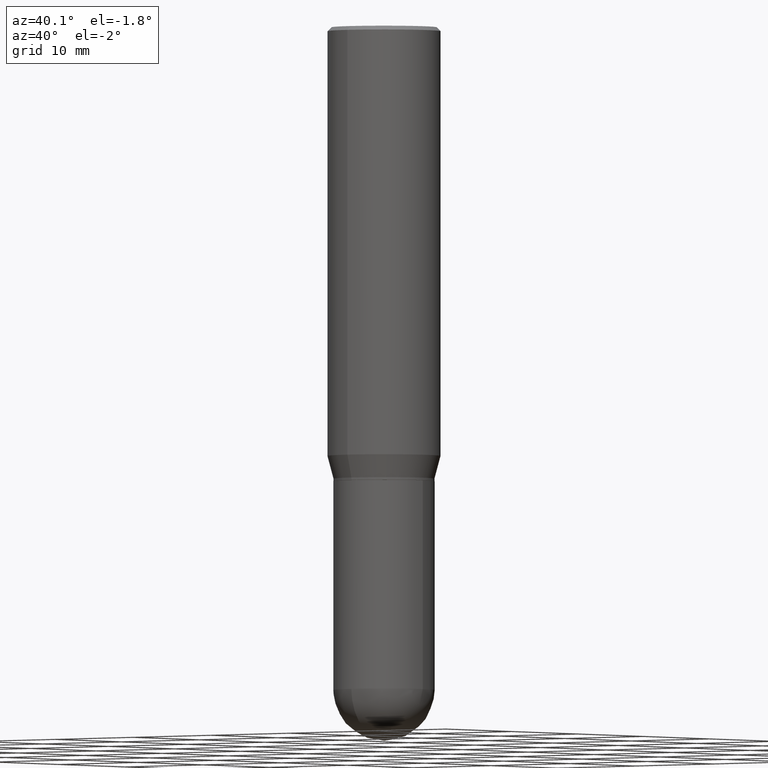
[diagram: clean part render]
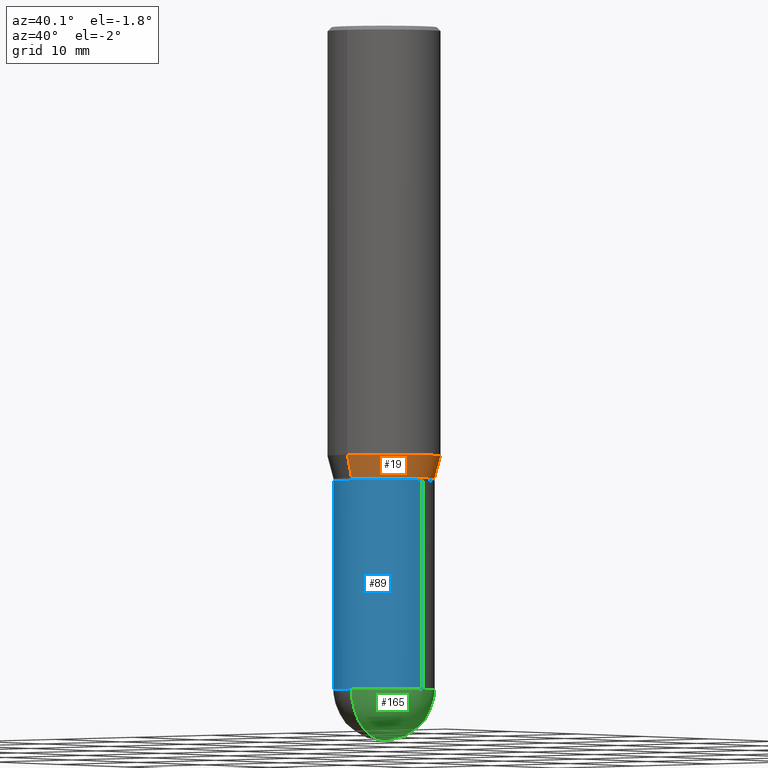
[diagram: same view with three faces highlighted in distinct colors, each labeled with its STEP entity id]
A machine part, auxiliary view with three faces highlighted in distinct colors.
Their STEP definitions:

[orange] entity #19 — the highlighted conical surface has half-angle 15 deg.
#18 = CARTESIAN_POINT ( 'NONE',  ( -1.363772610952084702E-15, -0.1953000000000059688, -1.739999999999999547 ) ) ;
#19 = ADVANCED_FACE ( 'NONE', ( #61 ), #150, .T. ) ;
#31 = DIRECTION ( 'NONE',  ( -6.982962677686266711E-15, -1.000000000000000000, 2.797591391361254348E-15 ) ) ;
#51 = LINE ( 'NONE', #323, #295 ) ;
#61 = FACE_OUTER_BOUND ( 'NONE', #156, .T. ) ;
#65 = ORIENTED_EDGE ( 'NONE', *, *, #186, .F. ) ;
#73 = EDGE_CURVE ( 'NONE', #213, #412, #188, .T. ) ;
#85 = CARTESIAN_POINT ( 'NONE',  ( -1.527523085743830414E-15, -0.2187500000000058009, -1.652483408562509082 ) ) ;
#96 = DIRECTION ( 'NONE',  ( -1.807323732225331323E-15, -0.2588190451025183525, 0.9659258262890689783 ) ) ;
#97 = VECTOR ( 'NONE', #96, 39.37007874015748854 ) ;
#133 = CARTESIAN_POINT ( 'NONE',  ( -1.363772610952084702E-15, -0.1953000000000059688, -1.739999999999999547 ) ) ;
#149 = VERTEX_POINT ( 'NONE', #85 ) ;
#150 = CONICAL_SURFACE ( 'NONE', #363, 0.1952999999999998904, 0.2617993877991504625 ) ;
#156 = EDGE_LOOP ( 'NONE', ( #457, #506, #65, #272 ) ) ;
#184 = CARTESIAN_POINT ( 'NONE',  ( 1.471001098707388140E-15, 0.1952999999999938119, -1.740000000000000657 ) ) ;
#186 = EDGE_CURVE ( 'NONE', #149, #393, #439, .T. ) ;
#188 = CIRCLE ( 'NONE', #415, 0.1952999999999998904 ) ;
#196 = DIRECTION ( 'NONE',  ( -2.445224538422357859E-29, 3.491831144182302259E-15, 1.000000000000000000 ) ) ;
#203 = DIRECTION ( 'NONE',  ( -6.982962677686265133E-15, -1.000000000000000000, 3.746534391310989557E-15 ) ) ;
#213 = VERTEX_POINT ( 'NONE', #18 ) ;
#272 = ORIENTED_EDGE ( 'NONE', *, *, #290, .F. ) ;
#278 = AXIS2_PLACEMENT_3D ( 'NONE', #313, #443, #203 ) ;
#290 = EDGE_CURVE ( 'NONE', #213, #149, #409, .T. ) ;
#295 = VECTOR ( 'NONE', #488, 39.37007874015748854 ) ;
#303 = DIRECTION ( 'NONE',  ( -2.445224538422357859E-29, 3.491831144182302259E-15, 1.000000000000000000 ) ) ;
#313 = CARTESIAN_POINT ( 'NONE',  ( 4.040692979952868380E-29, -5.770193031263100651E-15, -1.652483408562509748 ) ) ;
#323 = CARTESIAN_POINT ( 'NONE',  ( 1.387689962939517088E-15, 0.1952999999999938119, -1.740000000000000657 ) ) ;
#345 = CARTESIAN_POINT ( 'NONE',  ( 4.254690696854903488E-29, -6.075786190877206191E-15, -1.739999999999999991 ) ) ;
#355 = EDGE_CURVE ( 'NONE', #412, #393, #51, .T. ) ;
#363 = AXIS2_PLACEMENT_3D ( 'NONE', #430, #303, #31 ) ;
#367 = CARTESIAN_POINT ( 'NONE',  ( 1.554312234475258797E-15, 0.2187499999999941713, -1.652483408562510636 ) ) ;
#393 = VERTEX_POINT ( 'NONE', #367 ) ;
#409 = LINE ( 'NONE', #133, #97 ) ;
#412 = VERTEX_POINT ( 'NONE', #184 ) ;
#415 = AXIS2_PLACEMENT_3D ( 'NONE', #345, #196, #475 ) ;
#430 = CARTESIAN_POINT ( 'NONE',  ( 4.254690696854903488E-29, -6.075786190877206191E-15, -1.739999999999999991 ) ) ;
#439 = CIRCLE ( 'NONE', #278, 0.2187500000000000000 ) ;
#443 = DIRECTION ( 'NONE',  ( -2.445224538422357859E-29, 3.491831144182302259E-15, 1.000000000000000000 ) ) ;
#457 = ORIENTED_EDGE ( 'NONE', *, *, #73, .T. ) ;
#475 = DIRECTION ( 'NONE',  ( -6.982962677686266711E-15, -1.000000000000000000, 2.797591391361254348E-15 ) ) ;
#488 = DIRECTION ( 'NONE',  ( 1.839019923739601499E-15, 0.2588190451025251249, 0.9659258262890670910 ) ) ;
#506 = ORIENTED_EDGE ( 'NONE', *, *, #355, .T. ) ;

[blue] entity #89 — the highlighted cylindrical surface (partial cylindrical patch) has radius 4.9606 mm, axis along (-0, 0, 1).
#3 = FACE_OUTER_BOUND ( 'NONE', #59, .T. ) ;
#8 = CARTESIAN_POINT ( 'NONE',  ( -1.387689962939413353E-15, -0.1953000000000089664, -2.554699999999999527 ) ) ;
#13 = AXIS2_PLACEMENT_3D ( 'NONE', #256, #330, #334 ) ;
#32 = EDGE_CURVE ( 'NONE', #116, #101, #369, .T. ) ;
#35 = EDGE_CURVE ( 'NONE', #318, #336, #225, .T. ) ;
#40 = ORIENTED_EDGE ( 'NONE', *, *, #300, .T. ) ;
#47 = AXIS2_PLACEMENT_3D ( 'NONE', #88, #131, #353 ) ;
#59 = EDGE_LOOP ( 'NONE', ( #403, #40, #456, #231, #373 ) ) ;
#66 = DIRECTION ( 'NONE',  ( -2.445468806185136597E-29, 3.491481338843145583E-15, 1.000000000000000000 ) ) ;
#75 = VERTEX_POINT ( 'NONE', #275 ) ;
#88 = CARTESIAN_POINT ( 'NONE',  ( 0.000000000000000000, 0.000000000000000000, 0.000000000000000000 ) ) ;
#89 = ADVANCED_FACE ( 'NONE', ( #3 ), #320, .T. ) ;
#93 = DIRECTION ( 'NONE',  ( -2.445468806185136877E-29, 3.491481338843145188E-15, 1.000000000000000000 ) ) ;
#101 = VERTEX_POINT ( 'NONE', #401 ) ;
#116 = VERTEX_POINT ( 'NONE', #8 ) ;
#131 = DIRECTION ( 'NONE',  ( -2.445468806185136597E-29, 3.491481338843145583E-15, 1.000000000000000000 ) ) ;
#141 = AXIS2_PLACEMENT_3D ( 'NONE', #185, #66, #191 ) ;
#158 = DIRECTION ( 'NONE',  ( 1.000000000000000000, -6.982962677686267499E-15, 0.000000000000000000 ) ) ;
#162 = CARTESIAN_POINT ( 'NONE',  ( 4.279570410823988484E-29, -6.110092342975504671E-15, -1.750000000000000000 ) ) ;
#170 = CARTESIAN_POINT ( 'NONE',  ( -0.1953000000000000569, -6.127199896719566760E-15, -2.554699999999999971 ) ) ;
#181 = EDGE_CURVE ( 'NONE', #336, #75, #250, .T. ) ;
#185 = CARTESIAN_POINT ( 'NONE',  ( 6.247439159161168638E-29, -8.919687376342582955E-15, -2.554699999999999971 ) ) ;
#191 = DIRECTION ( 'NONE',  ( 1.000000000000000000, -6.982962677686266711E-15, 0.000000000000000000 ) ) ;
#207 = VECTOR ( 'NONE', #379, 39.37007874015748143 ) ;
#209 = CARTESIAN_POINT ( 'NONE',  ( -0.1953000000000000291, -6.127199896719567549E-15, -1.750000000000000000 ) ) ;
#225 = LINE ( 'NONE', #305, #207 ) ;
#231 = ORIENTED_EDGE ( 'NONE', *, *, #252, .T. ) ;
#250 = CIRCLE ( 'NONE', #321, 0.1953000000000000291 ) ;
#252 = EDGE_CURVE ( 'NONE', #101, #75, #418, .T. ) ;
#256 = CARTESIAN_POINT ( 'NONE',  ( 6.247439159161168638E-29, -8.919687376342582955E-15, -2.554699999999999971 ) ) ;
#275 = CARTESIAN_POINT ( 'NONE',  ( 0.1953000000000000291, -7.473864953927632957E-15, -1.750000000000000000 ) ) ;
#289 = CARTESIAN_POINT ( 'NONE',  ( 0.1953000000000000291, -1.363772610952128089E-15, 9.523173243129463579E-30 ) ) ;
#300 = EDGE_CURVE ( 'NONE', #318, #116, #387, .T. ) ;
#305 = CARTESIAN_POINT ( 'NONE',  ( -0.1953000000000000291, 1.387689962939475870E-15, -9.606680231267831797E-30 ) ) ;
#318 = VERTEX_POINT ( 'NONE', #170 ) ;
#320 = CYLINDRICAL_SURFACE ( 'NONE', #47, 0.1953000000000000291 ) ;
#321 = AXIS2_PLACEMENT_3D ( 'NONE', #162, #357, #158 ) ;
#330 = DIRECTION ( 'NONE',  ( -2.445468806185136597E-29, 3.491481338843145583E-15, 1.000000000000000000 ) ) ;
#334 = DIRECTION ( 'NONE',  ( 1.000000000000000000, -6.982962677686266711E-15, 0.000000000000000000 ) ) ;
#336 = VERTEX_POINT ( 'NONE', #209 ) ;
#353 = DIRECTION ( 'NONE',  ( 1.000000000000000000, -6.982962677686266711E-15, 4.876176775795935793E-29 ) ) ;
#357 = DIRECTION ( 'NONE',  ( -2.445468806185136597E-29, 3.491481338843145583E-15, 1.000000000000000000 ) ) ;
#369 = CIRCLE ( 'NONE', #141, 0.1953000000000000569 ) ;
#373 = ORIENTED_EDGE ( 'NONE', *, *, #181, .F. ) ;
#379 = DIRECTION ( 'NONE',  ( -2.445468806185136877E-29, 3.491481338843145188E-15, 1.000000000000000000 ) ) ;
#387 = CIRCLE ( 'NONE', #13, 0.1953000000000000569 ) ;
#401 = CARTESIAN_POINT ( 'NONE',  ( 0.1953000000000000569, -8.878662470611173282E-15, -2.554699999999999971 ) ) ;
#403 = ORIENTED_EDGE ( 'NONE', *, *, #35, .F. ) ;
#418 = LINE ( 'NONE', #289, #423 ) ;
#423 = VECTOR ( 'NONE', #93, 39.37007874015748143 ) ;
#456 = ORIENTED_EDGE ( 'NONE', *, *, #32, .T. ) ;

[green] entity #165 — the highlighted spherical surface has radius 4.9606 mm.
#8 = CARTESIAN_POINT ( 'NONE',  ( -1.387689962939413353E-15, -0.1953000000000089664, -2.554699999999999527 ) ) ;
#21 = ORIENTED_EDGE ( 'NONE', *, *, #145, .F. ) ;
#32 = EDGE_CURVE ( 'NONE', #116, #101, #369, .T. ) ;
#37 = DIRECTION ( 'NONE',  ( -1.000000000000000000, 7.105427357601001070E-15, -4.926315508542082329E-29 ) ) ;
#42 = DIRECTION ( 'NONE',  ( -1.000000000000000000, 6.982962677686266711E-15, -4.883557194083112901E-29 ) ) ;
#52 = VERTEX_POINT ( 'NONE', #384 ) ;
#55 = ORIENTED_EDGE ( 'NONE', *, *, #76, .F. ) ;
#66 = DIRECTION ( 'NONE',  ( -2.445468806185136597E-29, 3.491481338843145583E-15, 1.000000000000000000 ) ) ;
#76 = EDGE_CURVE ( 'NONE', #101, #151, #370, .T. ) ;
#80 = DIRECTION ( 'NONE',  ( 6.982962677686266711E-15, 1.000000000000000000, -2.797591391361252376E-15 ) ) ;
#82 = AXIS2_PLACEMENT_3D ( 'NONE', #169, #37, #482 ) ;
#101 = VERTEX_POINT ( 'NONE', #401 ) ;
#106 = CIRCLE ( 'NONE', #82, 0.1953000000000000291 ) ;
#116 = VERTEX_POINT ( 'NONE', #8 ) ;
#119 = SPHERICAL_SURFACE ( 'NONE', #134, 0.1953000000000000291 ) ;
#134 = AXIS2_PLACEMENT_3D ( 'NONE', #240, #42, #80 ) ;
#138 = DIRECTION ( 'NONE',  ( 1.000000000000000000, -6.982962677686265922E-15, 4.883557194083112340E-29 ) ) ;
#141 = AXIS2_PLACEMENT_3D ( 'NONE', #185, #66, #191 ) ;
#145 = EDGE_CURVE ( 'NONE', #52, #116, #106, .T. ) ;
#151 = VERTEX_POINT ( 'NONE', #282 ) ;
#163 = CARTESIAN_POINT ( 'NONE',  ( 6.247439159161168638E-29, -8.919687376342582955E-15, -2.554699999999999971 ) ) ;
#165 = ADVANCED_FACE ( 'NONE', ( #509 ), #119, .T. ) ;
#169 = CARTESIAN_POINT ( 'NONE',  ( 6.252116918762979989E-29, -8.912988558351247541E-15, -2.554699999999999971 ) ) ;
#174 = CIRCLE ( 'NONE', #364, 0.1953000000000000291 ) ;
#175 = CARTESIAN_POINT ( 'NONE',  ( 6.252116918762979989E-29, -8.912988558351247541E-15, -2.554699999999999971 ) ) ;
#185 = CARTESIAN_POINT ( 'NONE',  ( 6.247439159161168638E-29, -8.919687376342582955E-15, -2.554699999999999971 ) ) ;
#191 = DIRECTION ( 'NONE',  ( 1.000000000000000000, -6.982962677686266711E-15, 0.000000000000000000 ) ) ;
#236 = DIRECTION ( 'NONE',  ( 1.000000000000000000, -6.982962677686266711E-15, 0.000000000000000000 ) ) ;
#240 = CARTESIAN_POINT ( 'NONE',  ( 6.252116918762979989E-29, -8.912988558351247541E-15, -2.554699999999999971 ) ) ;
#282 = CARTESIAN_POINT ( 'NONE',  ( 1.363772610952190606E-15, 0.1952999999999911473, -2.554700000000000415 ) ) ;
#291 = DIRECTION ( 'NONE',  ( 6.982962677686266711E-15, 1.000000000000000000, 0.000000000000000000 ) ) ;
#347 = EDGE_LOOP ( 'NONE', ( #21, #368, #55, #426 ) ) ;
#364 = AXIS2_PLACEMENT_3D ( 'NONE', #175, #138, #291 ) ;
#368 = ORIENTED_EDGE ( 'NONE', *, *, #395, .T. ) ;
#369 = CIRCLE ( 'NONE', #141, 0.1953000000000000569 ) ;
#370 = CIRCLE ( 'NONE', #477, 0.1953000000000000569 ) ;
#384 = CARTESIAN_POINT ( 'NONE',  ( 6.738067675424772833E-29, -9.582916187833640258E-15, -2.750000000000000000 ) ) ;
#395 = EDGE_CURVE ( 'NONE', #52, #151, #174, .T. ) ;
#401 = CARTESIAN_POINT ( 'NONE',  ( 0.1953000000000000569, -8.878662470611173282E-15, -2.554699999999999971 ) ) ;
#426 = ORIENTED_EDGE ( 'NONE', *, *, #32, .F. ) ;
#444 = DIRECTION ( 'NONE',  ( -2.445468806185136597E-29, 3.491481338843145583E-15, 1.000000000000000000 ) ) ;
#477 = AXIS2_PLACEMENT_3D ( 'NONE', #163, #444, #236 ) ;
#482 = DIRECTION ( 'NONE',  ( -7.105427357601001070E-15, -1.000000000000000000, 0.000000000000000000 ) ) ;
#509 = FACE_OUTER_BOUND ( 'NONE', #347, .T. ) ;